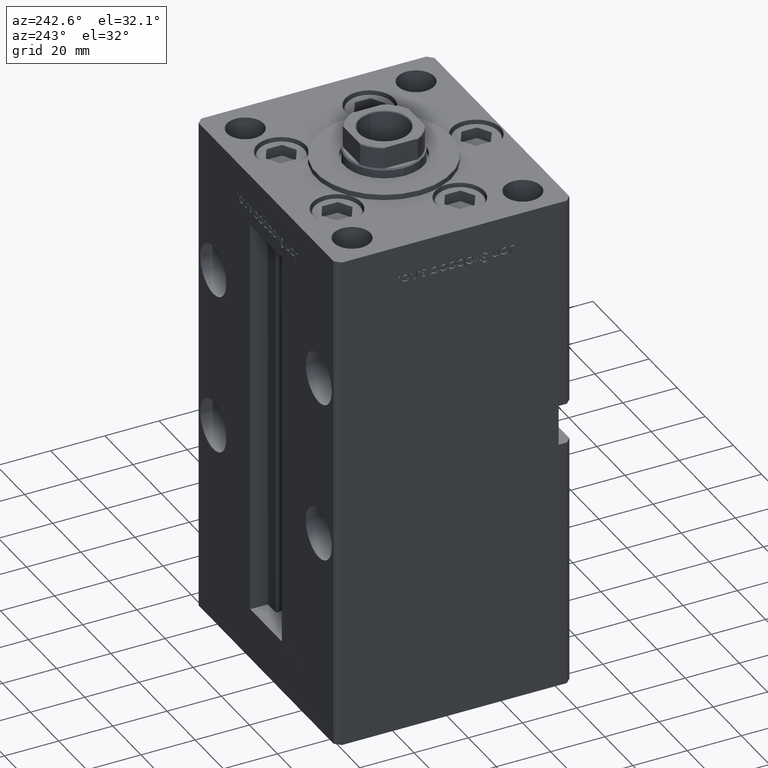
[diagram: clean part render]
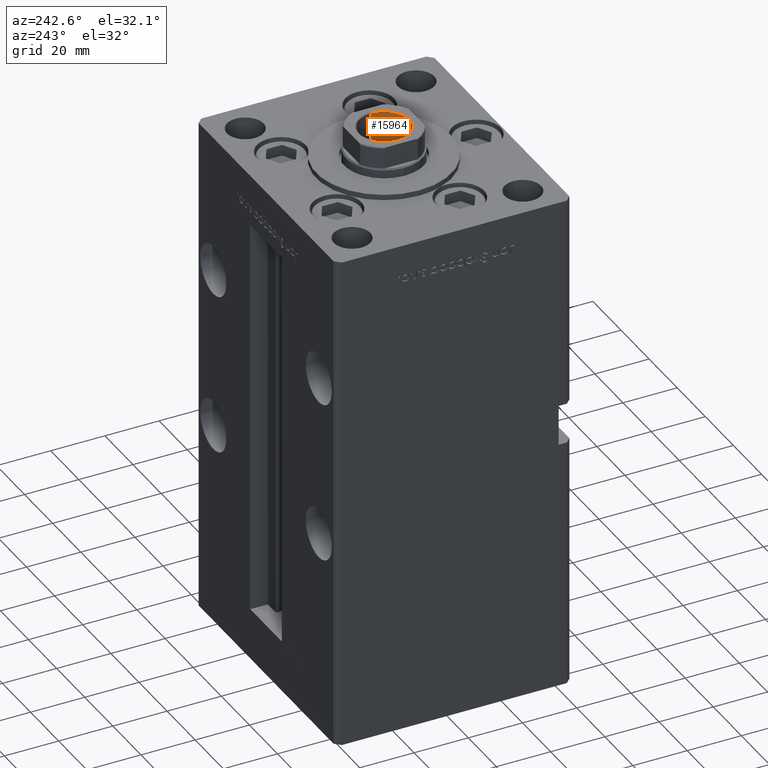
[diagram: same view with one face highlighted and labeled with its STEP entity id]
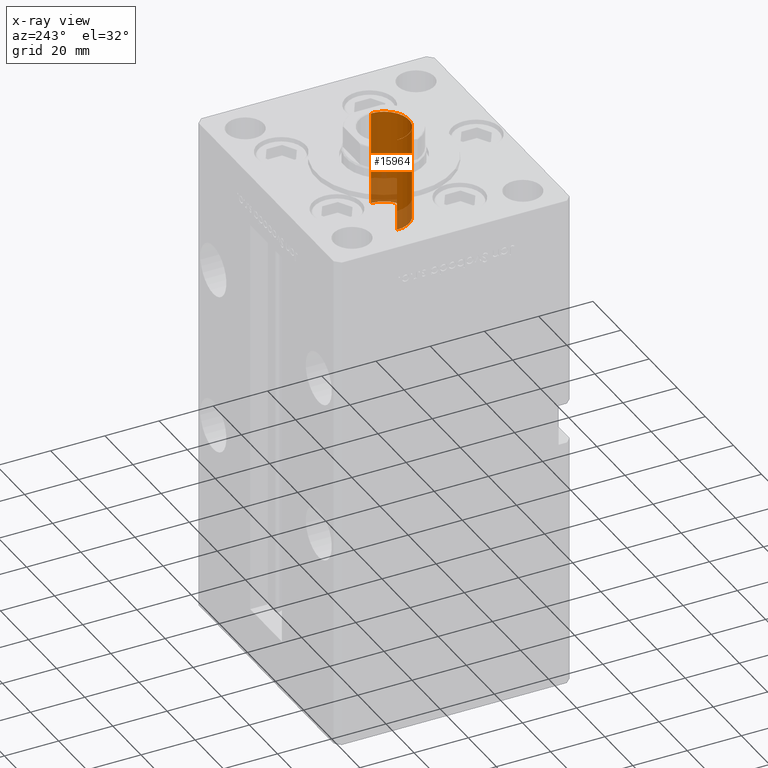
[diagram: x-ray of the same camera — body ghosted, the highlighted face saturated]
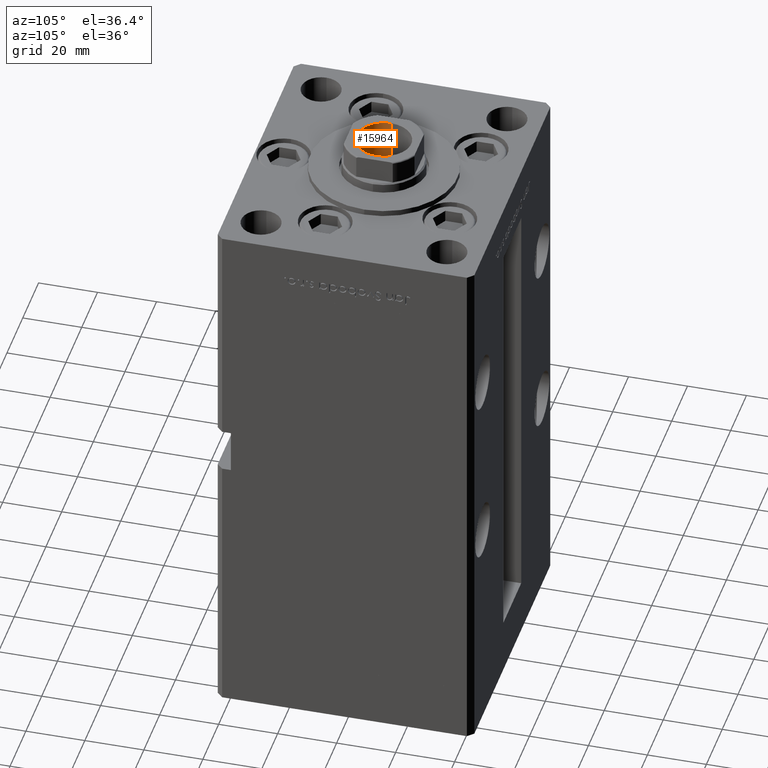
[diagram: same view with one face highlighted and labeled with its STEP entity id]
A machine part, auxiliary view. The second image highlights one B-rep face of the part: STEP entity #15964.
The next image is the same camera in x-ray: the body ghosted, the highlighted face saturated — about 24% of this face is hidden behind the body in this view.
A second angle (auxiliary view) of the same face is appended — the face is thin or edge-on in the first view.
In plain terms, the highlighted cylindrical surface (edge-blend (fillet) strip) has radius 9.25 mm, axis along (0, 0, 1).
Its self-contained STEP definition (entity closure, byte-faithful):
#49 = DIRECTION ( 'NONE',  ( 0.000000000000000000, 0.000000000000000000, 1.000000000000000000 ) ) ;
#1674 = EDGE_CURVE ( 'NONE', #44016, #29454, #27688, .T. ) ;
#4087 = EDGE_CURVE ( 'NONE', #40277, #29454, #49130, .T. ) ;
#8131 = CARTESIAN_POINT ( 'NONE',  ( 0.000000000000000000, 0.000000000000000000, 164.9499999999999886 ) ) ;
#8397 = LINE ( 'NONE', #46327, #33559 ) ;
#10972 = DIRECTION ( 'NONE',  ( -0.000000000000000000, -0.000000000000000000, 1.000000000000000000 ) ) ;
#14951 = CIRCLE ( 'NONE', #43287, 9.249999999999994671 ) ;
#15964 = ADVANCED_FACE ( 'NONE', ( #20118 ), #23335, .F. ) ;
#16384 = VERTEX_POINT ( 'NONE', #29145 ) ;
#20118 = FACE_OUTER_BOUND ( 'NONE', #51992, .T. ) ;
#21836 = ORIENTED_EDGE ( 'NONE', *, *, #51717, .F. ) ;
#23335 = CYLINDRICAL_SURFACE ( 'NONE', #36653, 9.249999999999996447 ) ;
#25879 = DIRECTION ( 'NONE',  ( 1.000000000000000000, 0.000000000000000000, 0.000000000000000000 ) ) ;
#27688 = CIRCLE ( 'NONE', #37989, 9.249999999999996447 ) ;
#28603 = VECTOR ( 'NONE', #45627, 1000.000000000000000 ) ;
#29145 = CARTESIAN_POINT ( 'NONE',  ( -9.249999999999994671, 1.132798289211300909E-15, 130.2500000000000000 ) ) ;
#29365 = DIRECTION ( 'NONE',  ( -0.000000000000000000, -0.000000000000000000, 1.000000000000000000 ) ) ;
#29454 = VERTEX_POINT ( 'NONE', #44263 ) ;
#32610 = DIRECTION ( 'NONE',  ( 1.000000000000000000, 0.000000000000000000, 0.000000000000000000 ) ) ;
#32757 = EDGE_CURVE ( 'NONE', #16384, #44016, #8397, .T. ) ;
#33559 = VECTOR ( 'NONE', #29365, 1000.000000000000000 ) ;
#33773 = CARTESIAN_POINT ( 'NONE',  ( -9.249999999999996447, 1.132798289211301304E-15, 164.9499999999999886 ) ) ;
#34754 = DIRECTION ( 'NONE',  ( -0.000000000000000000, -0.000000000000000000, 1.000000000000000000 ) ) ;
#36516 = CARTESIAN_POINT ( 'NONE',  ( 0.000000000000000000, 0.000000000000000000, 165.2500000000000000 ) ) ;
#36653 = AXIS2_PLACEMENT_3D ( 'NONE', #36516, #10972, #43793 ) ;
#37160 = ORIENTED_EDGE ( 'NONE', *, *, #4087, .F. ) ;
#37989 = AXIS2_PLACEMENT_3D ( 'NONE', #8131, #49, #32610 ) ;
#40277 = VERTEX_POINT ( 'NONE', #46023 ) ;
#43103 = ORIENTED_EDGE ( 'NONE', *, *, #32757, .T. ) ;
#43287 = AXIS2_PLACEMENT_3D ( 'NONE', #51177, #34754, #25879 ) ;
#43793 = DIRECTION ( 'NONE',  ( 1.000000000000000000, 0.000000000000000000, 0.000000000000000000 ) ) ;
#44016 = VERTEX_POINT ( 'NONE', #33773 ) ;
#44263 = CARTESIAN_POINT ( 'NONE',  ( 9.249999999999996447, 0.000000000000000000, 164.9499999999999886 ) ) ;
#44838 = CARTESIAN_POINT ( 'NONE',  ( 9.249999999999996447, 0.000000000000000000, 165.2500000000000000 ) ) ;
#45627 = DIRECTION ( 'NONE',  ( -0.000000000000000000, -0.000000000000000000, 1.000000000000000000 ) ) ;
#46023 = CARTESIAN_POINT ( 'NONE',  ( 9.249999999999994671, 0.000000000000000000, 130.2500000000000000 ) ) ;
#46327 = CARTESIAN_POINT ( 'NONE',  ( -9.249999999999996447, 1.132798289211301304E-15, 165.2500000000000000 ) ) ;
#49130 = LINE ( 'NONE', #44838, #28603 ) ;
#51177 = CARTESIAN_POINT ( 'NONE',  ( 0.000000000000000000, 0.000000000000000000, 130.2500000000000000 ) ) ;
#51186 = ORIENTED_EDGE ( 'NONE', *, *, #1674, .T. ) ;
#51717 = EDGE_CURVE ( 'NONE', #16384, #40277, #14951, .T. ) ;
#51992 = EDGE_LOOP ( 'NONE', ( #21836, #43103, #51186, #37160 ) ) ;